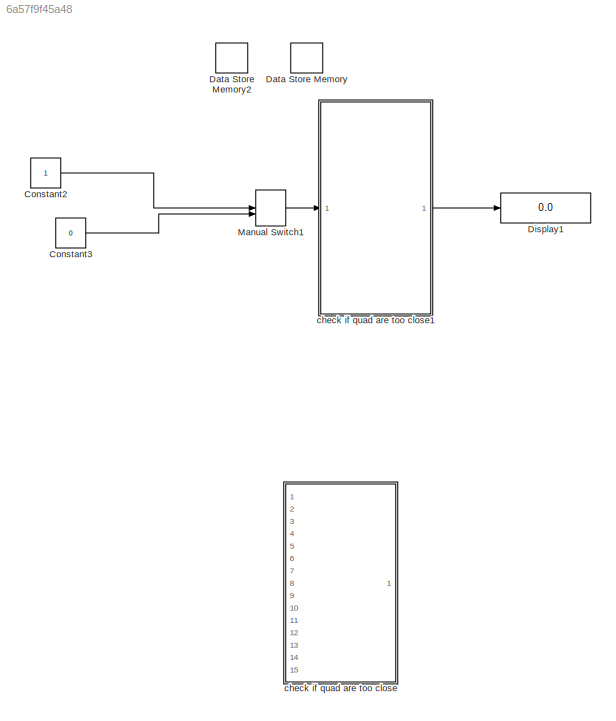
MODEL slx_6a57f9f45a48
KIND model
BLOCK [Constant] Constant2
BLOCK [Constant] Constant3
  Value = 0
BLOCK [DataStoreMemory] Data Store Memory
  DataStoreName = counter
  InitialValue = 25
  OutDataTypeStr = double
  SignalType = real
BLOCK [DataStoreMemory] Data Store Memory2
  DataStoreName = PWMclaw
  InitialValue = 1690
  OutDataTypeStr = double
  SignalType = real
BLOCK [Display] Display1
  Decimation = 1
  Lockdown = off
  Ports = [1]
BLOCK [ManualSwitch] Manual Switch1
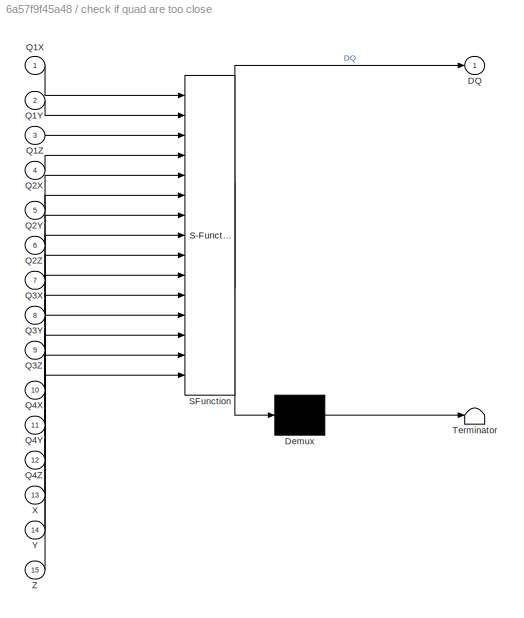
BLOCK [SubSystem] check if quad are too close
  ErrorFcn = Stateflow.Translate.translate
  FunctionWithSeparateData = off
  MaskHideContents = off
  MinAlgLoopOccurrences = off
  Opaque = off
  PermitHierarchicalResolution = ExplicitOnly
  Ports = [15, 1]
  PropExecContextOutsideSubsystem = off
  RTWSystemCode = Auto
  RequestExecContextInheritance = off
  SFBlockType = MATLAB Function
  TreatAsAtomicUnit = on
BLOCK [Demux] check if quad are too close/ Demux 
  Outputs = 1
  Ports = [1, 1]
BLOCK [S-Function] check if quad are too close/ SFunction 
  EnableBusSupport = on
  FunctionName = sf_sfun
  PortCounts = [15 2]
  Ports = [15, 2]
  Tag = Stateflow S-Function untitled 7
BLOCK [Terminator] check if quad are too close/ Terminator 
BLOCK [Outport] check if quad are too close/DQ
  IconDisplay = Port number
BLOCK [Inport] check if quad are too close/Q1X
  IconDisplay = Port number
BLOCK [Inport] check if quad are too close/Q1Y
  IconDisplay = Port number
  Port = 2
BLOCK [Inport] check if quad are too close/Q1Z
  IconDisplay = Port number
  Port = 3
BLOCK [Inport] check if quad are too close/Q2X
  IconDisplay = Port number
  Port = 4
BLOCK [Inport] check if quad are too close/Q2Y
  IconDisplay = Port number
  Port = 5
BLOCK [Inport] check if quad are too close/Q2Z
  IconDisplay = Port number
  Port = 6
BLOCK [Inport] check if quad are too close/Q3X
  IconDisplay = Port number
  Port = 7
BLOCK [Inport] check if quad are too close/Q3Y
  IconDisplay = Port number
  Port = 8
BLOCK [Inport] check if quad are too close/Q3Z
  IconDisplay = Port number
  Port = 9
BLOCK [Inport] check if quad are too close/Q4X
  IconDisplay = Port number
  Port = 10
BLOCK [Inport] check if quad are too close/Q4Y
  IconDisplay = Port number
  Port = 11
BLOCK [Inport] check if quad are too close/Q4Z
  IconDisplay = Port number
  Port = 12
BLOCK [Inport] check if quad are too close/X
  IconDisplay = Port number
  Port = 13
BLOCK [Inport] check if quad are too close/Y
  IconDisplay = Port number
  Port = 14
BLOCK [Inport] check if quad are too close/Z
  IconDisplay = Port number
  Port = 15
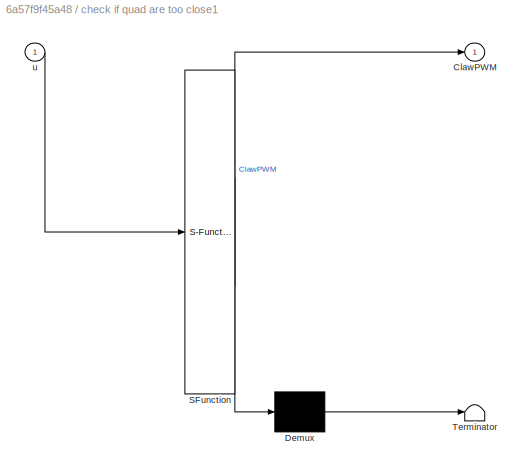
BLOCK [SubSystem] check if quad are too close1
  ErrorFcn = Stateflow.Translate.translate
  FunctionWithSeparateData = off
  MaskHideContents = off
  MinAlgLoopOccurrences = off
  Opaque = off
  PermitHierarchicalResolution = ExplicitOnly
  Ports = [1, 1]
  PropExecContextOutsideSubsystem = off
  RTWSystemCode = Auto
  RequestExecContextInheritance = off
  SFBlockType = MATLAB Function
  TreatAsAtomicUnit = on
BLOCK [Demux] check if quad are too close1/ Demux 
  Outputs = 1
  Ports = [1, 1]
BLOCK [S-Function] check if quad are too close1/ SFunction 
  EnableBusSupport = on
  FunctionName = sf_sfun
  PortCounts = [1 2]
  Ports = [1, 2]
  Tag = Stateflow S-Function untitled 1
BLOCK [Terminator] check if quad are too close1/ Terminator 
BLOCK [Outport] check if quad are too close1/ClawPWM
  IconDisplay = Port number
BLOCK [Inport] check if quad are too close1/u
  IconDisplay = Port number
LINE Constant2:1 -> Manual Switch1:1
LINE Constant3:1 -> Manual Switch1:2
LINE Manual Switch1:1 -> check if quad are too close1:1
LINE check if quad are too close1:1 -> Display1:1
